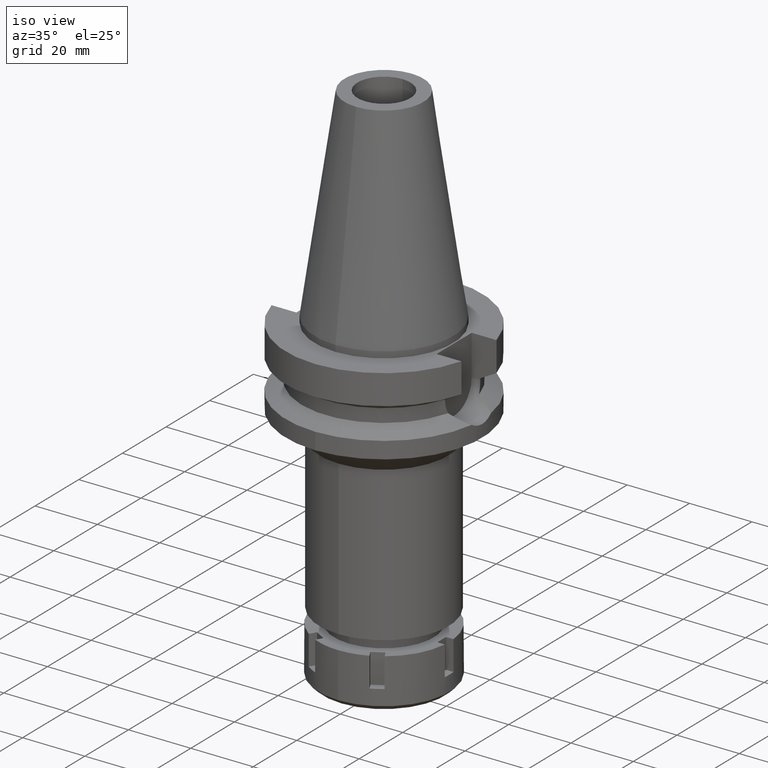
[diagram: clean part render]
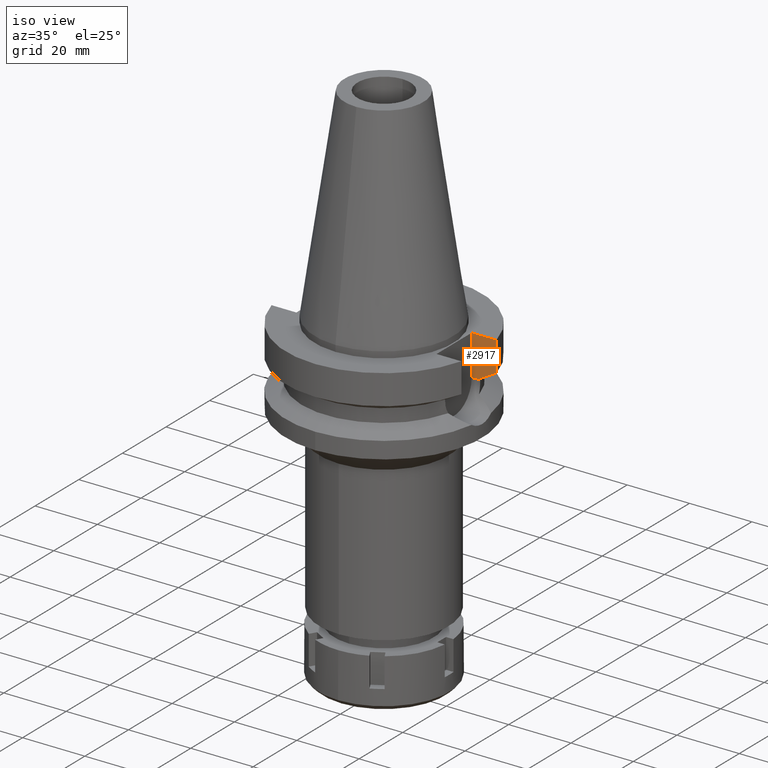
[diagram: same view with one face highlighted and labeled with its STEP entity id]
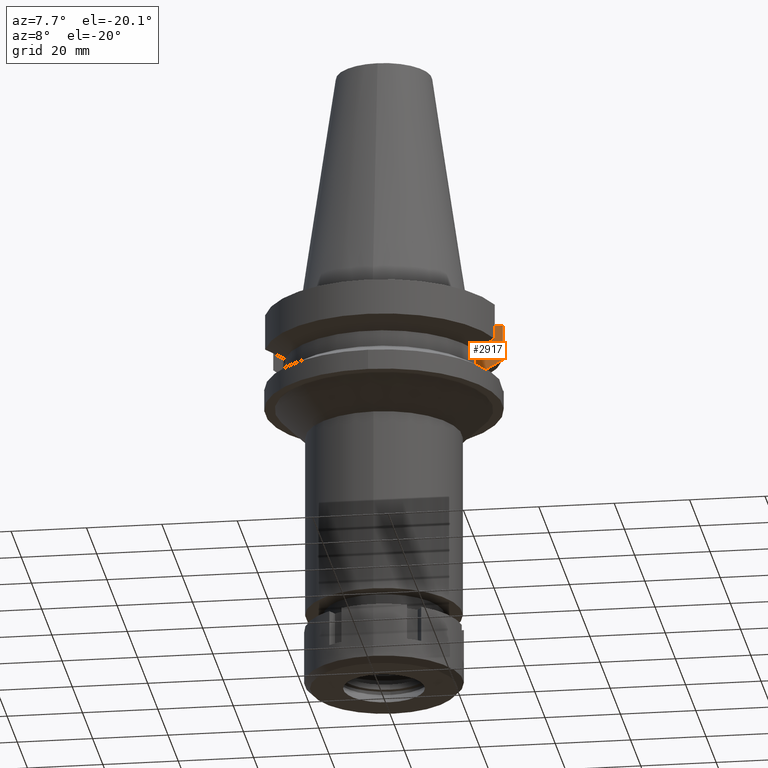
[diagram: same view with one face highlighted and labeled with its STEP entity id]
A machine part, iso view. The second image highlights one B-rep face of the part: STEP entity #2917.
A second angle (auxiliary view) of the same face is appended — the face is thin or edge-on in the first view.
In plain terms, the highlighted planar face has unit normal (0, 1, 0).
Its self-contained STEP definition (entity closure, byte-faithful):
#90 = DIRECTION ( 'NONE',  ( 0.0000000000000000000, 0.0000000000000000000, -1.000000000000000000 ) ) ;
#137 = EDGE_LOOP ( 'NONE', ( #2501, #3406, #2702, #891, #3375, #2723 ) ) ;
#229 = LINE ( 'NONE', #1101, #2684 ) ;
#386 = CARTESIAN_POINT ( 'NONE',  ( 30.45402272279000044, 8.050000000000000711, -2.000000000000000000 ) ) ;
#408 = DIRECTION ( 'NONE',  ( -0.0000000000000000000, 1.000000000000000000, 0.0000000000000000000 ) ) ;
#625 = VERTEX_POINT ( 'NONE', #2541 ) ;
#627 = CARTESIAN_POINT ( 'NONE',  ( 22.50000000000000000, 8.050000000000000711, -14.94999999999999929 ) ) ;
#891 = ORIENTED_EDGE ( 'NONE', *, *, #1679, .T. ) ;
#900 = CARTESIAN_POINT ( 'NONE',  ( 22.50000000000000000, 8.050000000000000711, -2.000000000000000000 ) ) ;
#938 = CARTESIAN_POINT ( 'NONE',  ( 22.50000000000000000, 8.050000000000000711, -14.94999999999999929 ) ) ;
#950 = EDGE_CURVE ( 'NONE', #625, #2121, #229, .T. ) ;
#952 = CARTESIAN_POINT ( 'NONE',  ( 22.50000000000000000, 8.050000000000000711, -2.000000000000000000 ) ) ;
#992 = B_SPLINE_CURVE_WITH_KNOTS ( 'NONE', 3,
 ( #1259, #3232, #2408, #3492 ),
 .UNSPECIFIED., .F., .F.,
 ( 4, 4 ),
 ( 0.0000000000000000000, 1.000000000000000000 ),
 .UNSPECIFIED. ) ;
#1101 = CARTESIAN_POINT ( 'NONE',  ( 30.45402291382999849, 8.049999277277001042, -11.56551216207999921 ) ) ;
#1164 = VERTEX_POINT ( 'NONE', #938 ) ;
#1259 = CARTESIAN_POINT ( 'NONE',  ( 30.45402291382999849, 8.049999277277001042, -11.56551216207999921 ) ) ;
#1283 = CARTESIAN_POINT ( 'NONE',  ( 22.50000000000000000, 8.050000000000000711, -2.000000000000000000 ) ) ;
#1289 = DIRECTION ( 'NONE',  ( 1.000000000000000000, 0.0000000000000000000, 0.0000000000000000000 ) ) ;
#1473 = DIRECTION ( 'NONE',  ( 1.000000000000000000, -3.506251283225999947E-14, 0.0000000000000000000 ) ) ;
#1507 = LINE ( 'NONE', #952, #3345 ) ;
#1550 = FACE_OUTER_BOUND ( 'NONE', #137, .T. ) ;
#1564 = EDGE_CURVE ( 'NONE', #2219, #2121, #2787, .T. ) ;
#1630 = EDGE_CURVE ( 'NONE', #1164, #2752, #2287, .T. ) ;
#1679 = EDGE_CURVE ( 'NONE', #2219, #1164, #1507, .T. ) ;
#1705 = VECTOR ( 'NONE', #3335, 1000.000000000000227 ) ;
#1840 = VERTEX_POINT ( 'NONE', #2694 ) ;
#1844 = PLANE ( 'NONE',  #3248 ) ;
#1855 = EDGE_CURVE ( 'NONE', #2752, #1840, #3278, .T. ) ;
#2121 = VERTEX_POINT ( 'NONE', #386 ) ;
#2219 = VERTEX_POINT ( 'NONE', #1283 ) ;
#2287 = LINE ( 'NONE', #627, #3286 ) ;
#2408 = CARTESIAN_POINT ( 'NONE',  ( 26.83754615080338368, 8.049990819218811211, -13.57774888653237255 ) ) ;
#2500 = VECTOR ( 'NONE', #1473, 1000.000000000000000 ) ;
#2501 = ORIENTED_EDGE ( 'NONE', *, *, #2873, .F. ) ;
#2541 = CARTESIAN_POINT ( 'NONE',  ( 30.45402291382999849, 8.049999277277001042, -11.56551216207999921 ) ) ;
#2684 = VECTOR ( 'NONE', #3055, 999.9999999999998863 ) ;
#2694 = CARTESIAN_POINT ( 'NONE',  ( 25.24772413156000184, 8.049995414687000306, -14.45229203637999937 ) ) ;
#2702 = ORIENTED_EDGE ( 'NONE', *, *, #1564, .F. ) ;
#2723 = ORIENTED_EDGE ( 'NONE', *, *, #1855, .T. ) ;
#2752 = VERTEX_POINT ( 'NONE', #3619 ) ;
#2787 = LINE ( 'NONE', #900, #2500 ) ;
#2873 = EDGE_CURVE ( 'NONE', #625, #1840, #992, .T. ) ;
#2917 = ADVANCED_FACE ( 'NONE', ( #1550 ), #1844, .F. ) ;
#2966 = CARTESIAN_POINT ( 'NONE',  ( 22.50000000000000000, 8.050000000000000711, -14.94999999999999929 ) ) ;
#3055 = DIRECTION ( 'NONE',  ( -1.997160274275988996E-08, 7.555500240961958579E-08, 0.9999999999999970024 ) ) ;
#3232 = CARTESIAN_POINT ( 'NONE',  ( 28.57292328149092597, 8.049998555497538177, -12.61549606051901762 ) ) ;
#3248 = AXIS2_PLACEMENT_3D ( 'NONE', #2966, #408, #1289 ) ;
#3278 = LINE ( 'NONE', #3589, #1705 ) ;
#3286 = VECTOR ( 'NONE', #3435, 1000.000000000000000 ) ;
#3335 = DIRECTION ( 'NONE',  ( 2.937431449991140861E-06, -9.212857328731440611E-06, 0.9999999999532472872 ) ) ;
#3345 = VECTOR ( 'NONE', #90, 1000.000000000000000 ) ;
#3375 = ORIENTED_EDGE ( 'NONE', *, *, #1630, .T. ) ;
#3406 = ORIENTED_EDGE ( 'NONE', *, *, #950, .T. ) ;
#3435 = DIRECTION ( 'NONE',  ( 1.000000000000000000, -1.551559937893000172E-14, 0.0000000000000000000 ) ) ;
#3492 = CARTESIAN_POINT ( 'NONE',  ( 25.24772413156000184, 8.049995414687000306, -14.45229203637999937 ) ) ;
#3589 = CARTESIAN_POINT ( 'NONE',  ( 25.24772266958000344, 8.050000000000000711, -14.94999999999999929 ) ) ;
#3619 = CARTESIAN_POINT ( 'NONE',  ( 25.24772266958000344, 8.050000000000000711, -14.94999999999999929 ) ) ;